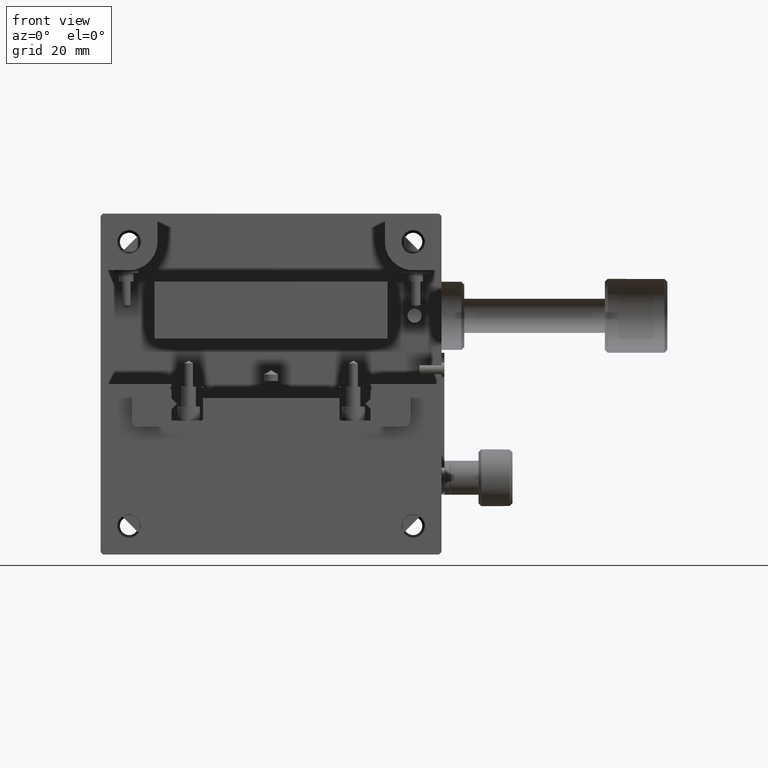
[diagram: clean part render]
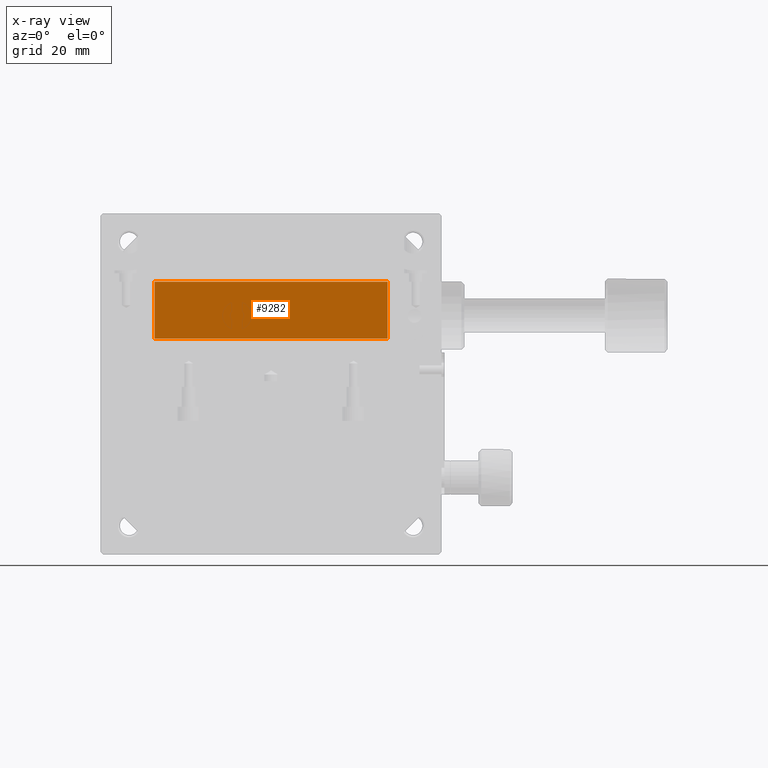
[diagram: x-ray — body ghosted, one internal face saturated and labeled with its STEP entity id]
A machine part, front view, then the same camera in x-ray: the body is ghosted and one INTERNAL B-rep face — a face not visible from any outside direction — is saturated and labeled: STEP entity #9282.
In plain terms, the highlighted planar face has unit normal (0, 1, 0).
Its self-contained STEP definition (entity closure, byte-faithful):
#750 = PLANE ( 'NONE',  #6227 ) ;
#1191 = CARTESIAN_POINT ( 'NONE',  ( 50.50000000000000000, 5.999999999999999112, -12.00000000000000000 ) ) ;
#1565 = CARTESIAN_POINT ( 'NONE',  ( 0.000000000000000000, 6.000000000000000000, 0.000000000000000000 ) ) ;
#1794 = ORIENTED_EDGE ( 'NONE', *, *, #7090, .T. ) ;
#1884 = LINE ( 'NONE', #9892, #4360 ) ;
#2366 = CARTESIAN_POINT ( 'NONE',  ( 9.500000000000000000, 5.999999999999998224, -22.00000000000000000 ) ) ;
#2431 = CARTESIAN_POINT ( 'NONE',  ( 9.500000000000001776, 5.999999999999998224, -22.00000000000000355 ) ) ;
#2509 = DIRECTION ( 'NONE',  ( 0.000000000000000000, 1.000000000000000000, 0.000000000000000000 ) ) ;
#2858 = VECTOR ( 'NONE', #7777, 1000.000000000000000 ) ;
#2941 = CARTESIAN_POINT ( 'NONE',  ( 9.500000000000000000, 5.999999999999998224, -12.00000000000000000 ) ) ;
#3198 = LINE ( 'NONE', #6784, #7187 ) ;
#4119 = ORIENTED_EDGE ( 'NONE', *, *, #7536, .T. ) ;
#4122 = LINE ( 'NONE', #2366, #8821 ) ;
#4211 = FACE_OUTER_BOUND ( 'NONE', #5823, .T. ) ;
#4212 = EDGE_CURVE ( 'NONE', #4319, #7830, #1884, .T. ) ;
#4319 = VERTEX_POINT ( 'NONE', #1191 ) ;
#4360 = VECTOR ( 'NONE', #9072, 1000.000000000000000 ) ;
#5153 = DIRECTION ( 'NONE',  ( 0.000000000000000000, -0.000000000000000000, 1.000000000000000000 ) ) ;
#5752 = VERTEX_POINT ( 'NONE', #2431 ) ;
#5823 = EDGE_LOOP ( 'NONE', ( #8700, #4119, #10626, #1794 ) ) ;
#6000 = DIRECTION ( 'NONE',  ( 0.000000000000000000, 0.000000000000000000, -1.000000000000000000 ) ) ;
#6063 = LINE ( 'NONE', #8655, #2858 ) ;
#6227 = AXIS2_PLACEMENT_3D ( 'NONE', #1565, #2509, #5153 ) ;
#6784 = CARTESIAN_POINT ( 'NONE',  ( 50.50000000000000000, 5.999999999999998224, -12.00000000000000000 ) ) ;
#7090 = EDGE_CURVE ( 'NONE', #7177, #4319, #3198, .T. ) ;
#7177 = VERTEX_POINT ( 'NONE', #8552 ) ;
#7187 = VECTOR ( 'NONE', #10390, 1000.000000000000000 ) ;
#7536 = EDGE_CURVE ( 'NONE', #7830, #5752, #4122, .T. ) ;
#7777 = DIRECTION ( 'NONE',  ( 1.000000000000000000, 0.000000000000000000, -0.000000000000000000 ) ) ;
#7830 = VERTEX_POINT ( 'NONE', #2941 ) ;
#8552 = CARTESIAN_POINT ( 'NONE',  ( 50.50000000000000711, 5.999999999999998224, -22.00000000000000355 ) ) ;
#8655 = CARTESIAN_POINT ( 'NONE',  ( 50.50000000000000000, 5.999999999999998224, -22.00000000000000000 ) ) ;
#8700 = ORIENTED_EDGE ( 'NONE', *, *, #4212, .T. ) ;
#8737 = EDGE_CURVE ( 'NONE', #5752, #7177, #6063, .T. ) ;
#8821 = VECTOR ( 'NONE', #6000, 1000.000000000000000 ) ;
#9072 = DIRECTION ( 'NONE',  ( -1.000000000000000000, 0.000000000000000000, -0.000000000000000000 ) ) ;
#9282 = ADVANCED_FACE ( 'NONE', ( #4211 ), #750, .F. ) ;
#9892 = CARTESIAN_POINT ( 'NONE',  ( 9.500000000000000000, 5.999999999999998224, -12.00000000000000000 ) ) ;
#10390 = DIRECTION ( 'NONE',  ( 0.000000000000000000, 0.000000000000000000, 1.000000000000000000 ) ) ;
#10626 = ORIENTED_EDGE ( 'NONE', *, *, #8737, .T. ) ;